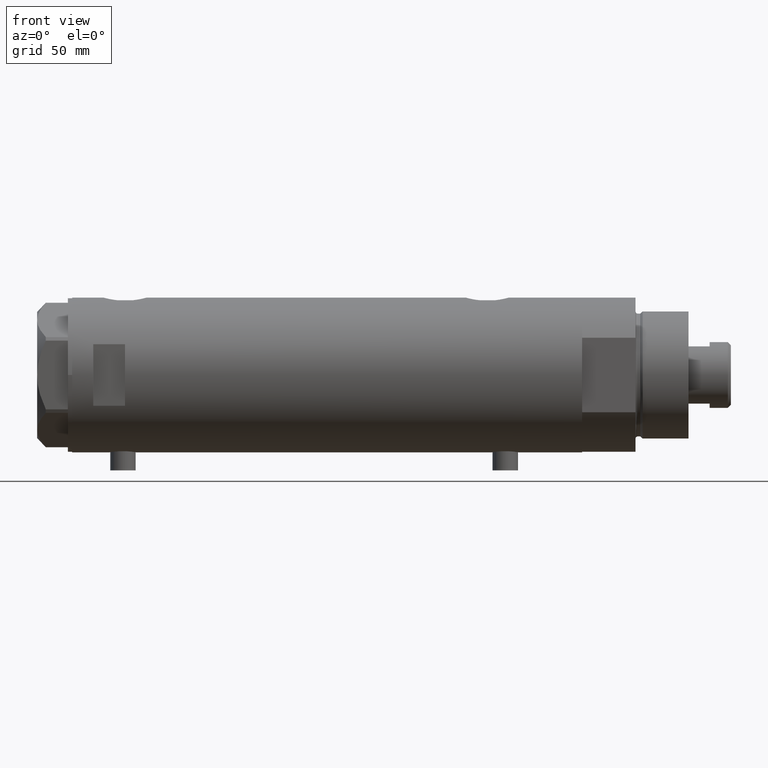
[diagram: clean part render]
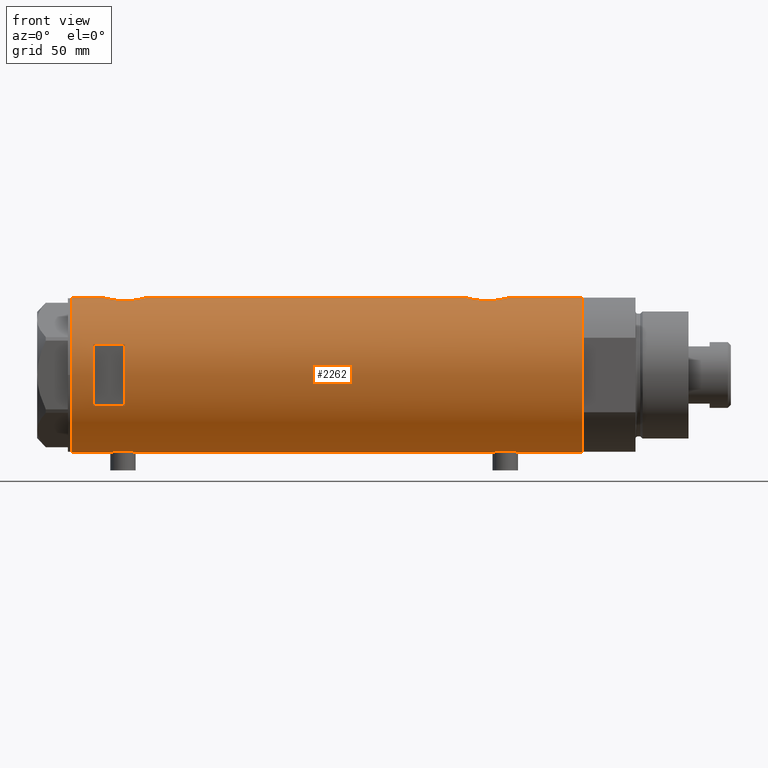
[diagram: same view with one face highlighted and labeled with its STEP entity id]
A machine part, front view. The second image highlights one B-rep face of the part: STEP entity #2262.
In plain terms, the highlighted cylindrical surface (partial cylindrical patch) has radius 36.5 mm, axis along (-1, -0, 0).
Its self-contained STEP definition (entity closure, byte-faithful):
#7 = CARTESIAN_POINT ( 'NONE',  ( 36.29527920868844859, -3.886508670267145416, -84.82716275830861719 ) ) ;
#8 = CARTESIAN_POINT ( 'NONE',  ( -36.49315367594273596, -0.8144497809045447845, 90.18960214445247914 ) ) ;
#11 = CARTESIAN_POINT ( 'NONE',  ( -36.02823773219768810, -5.849994928883552880, -86.30955101485642444 ) ) ;
#16 = DIRECTION ( 'NONE',  ( 0.000000000000000000, 0.000000000000000000, 1.000000000000000000 ) ) ;
#37 = EDGE_CURVE ( 'NONE', #2261, #2651, #3317, .T. ) ;
#40 = CARTESIAN_POINT ( 'NONE',  ( -36.01675918113430441, -5.920026275461277798, 94.38560443482110429 ) ) ;
#58 = CARTESIAN_POINT ( 'NONE',  ( 14.49137674618942739, -33.50000000000000000, 95.40000000000000568 ) ) ;
#62 = CARTESIAN_POINT ( 'NONE',  ( -35.96087392089862789, -6.250243747806517369, 96.80917490776182888 ) ) ;
#78 = CARTESIAN_POINT ( 'NONE',  ( -36.36656776002988778, -3.137002187003158582, 101.8213640927363457 ) ) ;
#116 = CARTESIAN_POINT ( 'NONE',  ( -36.50000000000000000, 4.469960816887838430E-15, -120.4000000000000057 ) ) ;
#120 = VERTEX_POINT ( 'NONE', #116 ) ;
#126 = CARTESIAN_POINT ( 'NONE',  ( -36.02782481185206365, -5.852531070448506512, 98.60277008952193967 ) ) ;
#170 = B_SPLINE_CURVE_WITH_KNOTS ( 'NONE', 3,
 ( #1147, #1990, #3460, #785, #3000, #431, #3386, #1325, #3911, #3478, #2741, #1722, #550, #4209, #2042, #1823, #727, #1471 ),
 .UNSPECIFIED., .F., .F.,
 ( 4, 2, 2, 2, 2, 2, 2, 2, 4 ),
 ( 0.01190956515753145012, 0.01339852714138290227, 0.01488748912523435441, 0.01637645110908580656, 0.01712093210101153090, 0.01786541309293725871, 0.01935437507678870739, 0.02084333706064015260, 0.02382126102834301526 ),
 .UNSPECIFIED. ) ;
#209 = CARTESIAN_POINT ( 'NONE',  ( 36.50000000000000000, 0.000000000000000000, -85.59999999999999432 ) ) ;
#248 = CARTESIAN_POINT ( 'NONE',  ( -36.47262891311153510, -1.427622242603855396, -78.01175370788301677 ) ) ;
#259 = DIRECTION ( 'NONE',  ( 1.000000000000000000, 0.000000000000000000, 0.000000000000000000 ) ) ;
#270 = B_SPLINE_CURVE_WITH_KNOTS ( 'NONE', 3,
 ( #1487, #2961, #4047, #4386, #2917, #2830, #767, #4437, #742, #1132, #992, #7, #2227, #4073, #4629, #3906, #2249, #209 ),
 .UNSPECIFIED., .F., .F.,
 ( 4, 2, 2, 2, 2, 2, 2, 2, 4 ),
 ( -0.01189883390545606531, -0.008924125429092034240, -0.008180448310001031675, -0.007436771190910029979, -0.005949416952728023983, -0.004462062714546017987, -0.002974708476364010257, -0.001487354238182005128, 1.734723475976807094E-18 ),
 .UNSPECIFIED. ) ;
#276 = CARTESIAN_POINT ( 'NONE',  ( -36.44621655743049615, -2.016281777336074832, 90.47017023300885796 ) ) ;
#278 = CARTESIAN_POINT ( 'NONE',  ( -36.39558535855674393, -2.764807686268001774, -89.70894118545612628 ) ) ;
#313 = CARTESIAN_POINT ( 'NONE',  ( -36.50000000000000000, 1.603939656238031057E-15, -77.85000000000000853 ) ) ;
#315 = EDGE_CURVE ( 'NONE', #1151, #2920, #4011, .T. ) ;
#329 = VECTOR ( 'NONE', #2767, 1000.000000000000000 ) ;
#334 = CARTESIAN_POINT ( 'NONE',  ( 36.29582892817134621, -3.881628320031159873, 104.6293443453499066 ) ) ;
#342 = ORIENTED_EDGE ( 'NONE', *, *, #3982, .F. ) ;
#348 = VERTEX_POINT ( 'NONE', #704 ) ;
#350 = CARTESIAN_POINT ( 'NONE',  ( -36.09582946723050867, -5.421573071064194060, -87.23608278370488733 ) ) ;
#369 = CARTESIAN_POINT ( 'NONE',  ( -36.50000000000000000, 4.469960493350315609E-15, 90.15000000000000568 ) ) ;
#384 = DIRECTION ( 'NONE',  ( 0.000000000000000000, 0.000000000000000000, 1.000000000000000000 ) ) ;
#392 = CARTESIAN_POINT ( 'NONE',  ( -35.98821803976956346, -6.090959022952117330, 97.81573883149417270 ) ) ;
#405 = CARTESIAN_POINT ( 'NONE',  ( 35.29999999999999716, -9.282241108697837362, 99.12021504754764578 ) ) ;
#418 = CARTESIAN_POINT ( 'NONE',  ( -36.43335814606993495, -2.212659578761325463, 102.2487639916951281 ) ) ;
#421 = CARTESIAN_POINT ( 'NONE',  ( -36.14410773716529235, -5.085921866747754372, -80.46164121579529649 ) ) ;
#431 = CARTESIAN_POINT ( 'NONE',  ( 36.34247810649306132, -3.420510937483959513, -66.19013481598274495 ) ) ;
#434 = DIRECTION ( 'NONE',  ( 0.000000000000000000, 0.000000000000000000, 1.000000000000000000 ) ) ;
#437 = CARTESIAN_POINT ( 'NONE',  ( 0.000000000000000000, 0.000000000000000000, 95.40000000000014779 ) ) ;
#441 = DIRECTION ( 'NONE',  ( 0.000000000000000000, 0.000000000000000000, 1.000000000000000000 ) ) ;
#444 = CARTESIAN_POINT ( 'NONE',  ( -36.01639592019625979, -5.922235714778421034, 98.40796802426915235 ) ) ;
#445 = ORIENTED_EDGE ( 'NONE', *, *, #37, .F. ) ;
#460 = CARTESIAN_POINT ( 'NONE',  ( -36.50000000000001421, -0.4136690418839317762, 102.6500000000000341 ) ) ;
#482 = CARTESIAN_POINT ( 'NONE',  ( 35.29999999999999716, -9.282241108697837362, 91.67978495245237980 ) ) ;
#484 = CIRCLE ( 'NONE', #1952, 36.50000000000000000 ) ;
#486 = CARTESIAN_POINT ( 'NONE',  ( -36.06543684817881257, -5.617774235967367247, 99.16954447971704667 ) ) ;
#493 = ORIENTED_EDGE ( 'NONE', *, *, #1298, .F. ) ;
#500 = EDGE_CURVE ( 'NONE', #1858, #2417, #4029, .T. ) ;
#550 = CARTESIAN_POINT ( 'NONE',  ( 35.93373217836897737, -6.415110096330620237, -67.91295733644906818 ) ) ;
#564 = AXIS2_PLACEMENT_3D ( 'NONE', #1670, #3054, #259 ) ;
#607 = CARTESIAN_POINT ( 'NONE',  ( 36.50000000000000000, 0.000000000000000000, -120.4000000000000057 ) ) ;
#615 = EDGE_CURVE ( 'NONE', #2933, #1971, #3258, .T. ) ;
#639 = EDGE_CURVE ( 'NONE', #348, #3776, #3612, .T. ) ;
#665 = CARTESIAN_POINT ( 'NONE',  ( -36.50000000000000000, 4.469960493350315609E-15, -90.35000000000000853 ) ) ;
#704 = CARTESIAN_POINT ( 'NONE',  ( 36.50000000000000000, 4.344614706140975428E-19, 105.4000000000000057 ) ) ;
#709 = DIRECTION ( 'NONE',  ( 1.000000000000000000, 0.000000000000000000, 0.000000000000000000 ) ) ;
#714 = CARTESIAN_POINT ( 'NONE',  ( -36.30176144752229561, -3.814344296723636951, -89.06801701950256245 ) ) ;
#715 = AXIS2_PLACEMENT_3D ( 'NONE', #4198, #1144, #2347 ) ;
#727 = CARTESIAN_POINT ( 'NONE',  ( 35.39807338191549491, -8.909271871950329214, -70.94919617267213141 ) ) ;
#742 = CARTESIAN_POINT ( 'NONE',  ( 36.00068527486601511, -6.030855700422090848, -83.59201327127354375 ) ) ;
#746 = LINE ( 'NONE', #1491, #1407 ) ;
#748 = CARTESIAN_POINT ( 'NONE',  ( -36.01675918113430441, -5.920026275461277798, -86.11439556517892413 ) ) ;
#767 = CARTESIAN_POINT ( 'NONE',  ( 35.83108131285856501, -6.958268797611358636, -82.78630783372825874 ) ) ;
#770 = B_SPLINE_CURVE_WITH_KNOTS ( 'NONE', 3,
 ( #665, #1419, #4390, #1040, #2498, #4701, #278, #4019, #3972, #714, #3585, #3302, #1768, #350, #4412, #11, #748, #2156, #3677, #3608, #1863, #3327, #1017, #2603, #1088, #4726, #826, #4513, #4449, #421, #3777, #3182, #2028, #3828, #3136, #3537, #936, #3875, #4300, #2203, #248, #1108, #1739, #313 ),
 .UNSPECIFIED., .F., .F.,
 ( 4, 2, 2, 2, 2, 2, 2, 2, 2, 2, 2, 2, 2, 2, 2, 2, 2, 2, 2, 2, 2, 4 ),
 ( 0.01957644481942643136, 0.02079966591703043266, 0.02202288701463443049, 0.02263449756343642941, 0.02324610811223842832, 0.02446932920984242615, 0.02569255030744642398, 0.02691577140505042529, 0.02752738195385242420, 0.02813899250265442659, 0.02936221360025846605, 0.03058543469786250205, 0.03119704524666452178, 0.03180865579546654498, 0.03303187689307057751, 0.03364348744187262152, 0.03425509799067465166, 0.03547831908827869807, 0.03670154018588274447, 0.03731315073468477461, 0.03792476128348679781, 0.03914798238109084422 ),
 .UNSPECIFIED. ) ;
#771 = CARTESIAN_POINT ( 'NONE',  ( -36.14410773716529235, -5.085921866747754372, 100.0383587842047461 ) ) ;
#772 = VERTEX_POINT ( 'NONE', #3401 ) ;
#785 = CARTESIAN_POINT ( 'NONE',  ( 36.44931971524465553, -1.985988150549293341, -65.78633139468234958 ) ) ;
#793 = CARTESIAN_POINT ( 'NONE',  ( -36.02823773219768810, -5.849994928883552880, 94.19044898514356134 ) ) ;
#799 = LINE ( 'NONE', #3664, #2820 ) ;
#804 = ORIENTED_EDGE ( 'NONE', *, *, #3433, .F. ) ;
#826 = CARTESIAN_POINT ( 'NONE',  ( -36.02782481185206365, -5.852531070448506512, -81.89722991047811718 ) ) ;
#862 = CARTESIAN_POINT ( 'NONE',  ( -36.09582946723050867, -5.421573071064194060, 93.26391721629518372 ) ) ;
#869 = CIRCLE ( 'NONE', #3558, 36.50000000000000000 ) ;
#897 = EDGE_CURVE ( 'NONE', #2475, #4777, #770, .T. ) ;
#936 = CARTESIAN_POINT ( 'NONE',  ( -36.39621039793029666, -2.776267550998806843, -78.48569246893224260 ) ) ;
#992 = CARTESIAN_POINT ( 'NONE',  ( 36.18850502651835654, -4.779575967213809840, -84.39779152890152147 ) ) ;
#1017 = CARTESIAN_POINT ( 'NONE',  ( -35.96794010939611752, -6.209972807992079069, -83.28444451008648741 ) ) ;
#1024 = B_SPLINE_CURVE_WITH_KNOTS ( 'NONE', 3,
 ( #482, #2642, #1972, #1679, #2414, #2441, #2467, #4217, #1732, #2094, #3867, #2364, #1335, #2792, #4266, #2770, #1653, #2387 ),
 .UNSPECIFIED., .F., .F.,
 ( 4, 2, 2, 2, 2, 2, 2, 2, 4 ),
 ( -0.01189883390545606531, -0.008924125429092034240, -0.008180448310001031675, -0.007436771190910029979, -0.005949416952728023983, -0.004462062714546017987, -0.002974708476364010257, -0.001487354238182005128, 1.734723475976807094E-18 ),
 .UNSPECIFIED. ) ;
#1037 = CARTESIAN_POINT ( 'NONE',  ( -36.50000000000000000, 4.469960493350315609E-15, -90.35000000000000853 ) ) ;
#1040 = CARTESIAN_POINT ( 'NONE',  ( -36.46614432713124643, -1.622933015999963313, -90.14966597386847980 ) ) ;
#1077 = CARTESIAN_POINT ( 'NONE',  ( 36.34247810649306132, -3.420510937483959513, 104.8098651840172977 ) ) ;
#1085 = EDGE_LOOP ( 'NONE', ( #4415, #1239, #4409, #4142, #4695, #493, #3748, #4225, #4168, #804, #1678, #342, #445, #4766, #2644, #3489 ) ) ;
#1088 = CARTESIAN_POINT ( 'NONE',  ( -35.99659093586380010, -6.041447834568799635, -82.48577587985177217 ) ) ;
#1108 = CARTESIAN_POINT ( 'NONE',  ( -36.49297138689434661, -0.8222528563518530786, -77.89066887946569295 ) ) ;
#1109 = VECTOR ( 'NONE', #384, 1000.000000000000000 ) ;
#1132 = CARTESIAN_POINT ( 'NONE',  ( 36.12792682573228831, -5.214735277442335004, -84.14693117988699100 ) ) ;
#1144 = DIRECTION ( 'NONE',  ( 0.000000000000000000, 0.000000000000000000, 1.000000000000000000 ) ) ;
#1145 = CARTESIAN_POINT ( 'NONE',  ( 35.39807338191549491, -8.909271871950329214, 100.0508038273278544 ) ) ;
#1147 = CARTESIAN_POINT ( 'NONE',  ( 36.50000000000000000, 4.344614706140975428E-19, -65.60000000000000853 ) ) ;
#1151 = VERTEX_POINT ( 'NONE', #2116 ) ;
#1155 = CARTESIAN_POINT ( 'NONE',  ( -36.30176144752229561, -3.814344296723636951, 91.43198298049746597 ) ) ;
#1191 = EDGE_CURVE ( 'NONE', #4076, #1677, #4656, .T. ) ;
#1202 = CARTESIAN_POINT ( 'NONE',  ( -36.19599073318030236, -4.702920041824403263, 100.5215383167658274 ) ) ;
#1212 = CARTESIAN_POINT ( 'NONE',  ( 36.18674680775578167, -4.776679548204626258, 104.1889231693125026 ) ) ;
#1218 = CARTESIAN_POINT ( 'NONE',  ( 36.50000000000000000, 0.000000000000000000, -120.4000000000000057 ) ) ;
#1239 = ORIENTED_EDGE ( 'NONE', *, *, #1693, .T. ) ;
#1298 = EDGE_CURVE ( 'NONE', #1151, #1971, #170, .T. ) ;
#1325 = CARTESIAN_POINT ( 'NONE',  ( 36.21540437201188922, -4.554727782332258279, -66.69402370911377886 ) ) ;
#1335 = CARTESIAN_POINT ( 'NONE',  ( 36.34184199234172041, -3.427106516421255744, 85.99259086319968048 ) ) ;
#1386 = CARTESIAN_POINT ( 'NONE',  ( 35.29999999999999716, -9.282241108697837362, -79.32021504754763441 ) ) ;
#1391 = CARTESIAN_POINT ( 'NONE',  ( -36.39558535855674393, -2.764807686268001774, 90.79105881454391636 ) ) ;
#1407 = VECTOR ( 'NONE', #2154, 1000.000000000000000 ) ;
#1419 = CARTESIAN_POINT ( 'NONE',  ( -36.49999999999999289, -0.4082012689449562859, -90.34999999999998010 ) ) ;
#1432 = CARTESIAN_POINT ( 'NONE',  ( 36.41918031349423757, -2.473644131148923009, 105.1018834546319027 ) ) ;
#1450 = CARTESIAN_POINT ( 'NONE',  ( 36.50000000000000000, 0.000000000000000000, -120.4000000000000057 ) ) ;
#1471 = CARTESIAN_POINT ( 'NONE',  ( 35.29999999999999716, -9.282241108697837362, -71.87978495245236843 ) ) ;
#1477 = CARTESIAN_POINT ( 'NONE',  ( -36.50000000000000000, 4.469960816887838430E-15, -120.4000000000000057 ) ) ;
#1487 = CARTESIAN_POINT ( 'NONE',  ( 35.29999999999999716, -9.282241108697837362, -79.32021504754763441 ) ) ;
#1491 = CARTESIAN_POINT ( 'NONE',  ( -14.49137674618942739, -33.50000000000000000, -120.4000000000000057 ) ) ;
#1515 = CARTESIAN_POINT ( 'NONE',  ( -36.21356728133255842, -4.566014386638764577, 100.6726266076474730 ) ) ;
#1522 = CARTESIAN_POINT ( 'NONE',  ( 36.09633718678917802, -5.417295330713078449, 103.8091486734521283 ) ) ;
#1531 = CARTESIAN_POINT ( 'NONE',  ( -36.39621039793029666, -2.776267550998806843, 102.0143075310678000 ) ) ;
#1609 = CARTESIAN_POINT ( 'NONE',  ( -35.96816095843705341, -6.208699946936198977, 95.57503622872209803 ) ) ;
#1653 = CARTESIAN_POINT ( 'NONE',  ( 36.50000000000000711, -0.5031001875915692700, 85.40000000000004832 ) ) ;
#1670 = CARTESIAN_POINT ( 'NONE',  ( 0.000000000000000000, 0.000000000000000000, 110.3999999999999915 ) ) ;
#1676 = LINE ( 'NONE', #4292, #329 ) ;
#1677 = VERTEX_POINT ( 'NONE', #3019 ) ;
#1678 = ORIENTED_EDGE ( 'NONE', *, *, #639, .T. ) ;
#1679 = CARTESIAN_POINT ( 'NONE',  ( 35.69273631926343882, -7.635692914629149008, 88.93799804348513760 ) ) ;
#1682 = VERTEX_POINT ( 'NONE', #4140 ) ;
#1693 = EDGE_CURVE ( 'NONE', #120, #3793, #484, .T. ) ;
#1722 = CARTESIAN_POINT ( 'NONE',  ( 36.00092304812866217, -6.029438422680412302, -67.60691844426347075 ) ) ;
#1728 = B_SPLINE_CURVE_WITH_KNOTS ( 'NONE', 3,
 ( #369, #2133, #8, #3583, #276, #1766, #1391, #2866, #4339, #1155, #3729, #4097, #1885, #862, #4149, #793, #40, #3414, #4556, #1609, #3353, #62, #1935, #392, #4123, #444, #126, #486, #2308, #771, #4535, #1202, #1515, #2342, #3079, #78, #1531, #418, #2643, #3699, #2278, #2990, #460, #3007 ),
 .UNSPECIFIED., .F., .F.,
 ( 4, 2, 2, 2, 2, 2, 2, 2, 2, 2, 2, 2, 2, 2, 2, 2, 2, 2, 2, 2, 2, 4 ),
 ( 0.01957644481942643136, 0.02079966591703043266, 0.02202288701463443049, 0.02263449756343642941, 0.02324610811223842832, 0.02446932920984242615, 0.02569255030744642398, 0.02691577140505042529, 0.02752738195385242420, 0.02813899250265442659, 0.02936221360025846605, 0.03058543469786250205, 0.03119704524666452178, 0.03180865579546654498, 0.03303187689307057751, 0.03364348744187262152, 0.03425509799067465166, 0.03547831908827869807, 0.03670154018588274447, 0.03731315073468477461, 0.03792476128348679781, 0.03914798238109084422 ),
 .UNSPECIFIED. ) ;
#1731 = VECTOR ( 'NONE', #2533, 1000.000000000000000 ) ;
#1732 = CARTESIAN_POINT ( 'NONE',  ( 36.00068527486601511, -6.030855700422090848, 87.40798672872648467 ) ) ;
#1739 = CARTESIAN_POINT ( 'NONE',  ( -36.50000000000001421, -0.4136690418839317762, -77.85000000000002274 ) ) ;
#1762 = DIRECTION ( 'NONE',  ( 0.000000000000000000, 0.000000000000000000, 1.000000000000000000 ) ) ;
#1766 = CARTESIAN_POINT ( 'NONE',  ( -36.40915499150419521, -2.580495338846545472, 90.70394986644524238 ) ) ;
#1768 = CARTESIAN_POINT ( 'NONE',  ( -36.16096637594732499, -4.968588355849258953, -87.91334492817760804 ) ) ;
#1798 = CARTESIAN_POINT ( 'NONE',  ( 36.50000000000000000, 4.344614706140975428E-19, 105.4000000000000057 ) ) ;
#1823 = CARTESIAN_POINT ( 'NONE',  ( 35.52323553852023963, -8.411295122831250026, -70.10247607048910368 ) ) ;
#1858 = VERTEX_POINT ( 'NONE', #2500 ) ;
#1863 = CARTESIAN_POINT ( 'NONE',  ( -35.96095902952617251, -6.249754054240900913, -84.51658765420468455 ) ) ;
#1865 = CARTESIAN_POINT ( 'NONE',  ( 35.29999999999999716, -9.282241108697837362, -120.4000000000000057 ) ) ;
#1866 = LINE ( 'NONE', #2972, #2968 ) ;
#1885 = CARTESIAN_POINT ( 'NONE',  ( -36.16096637594732499, -4.968588355849258953, 92.58665507182242038 ) ) ;
#1909 = DIRECTION ( 'NONE',  ( -0.000000000000000000, -4.625929269271492422E-15, 1.000000000000000000 ) ) ;
#1915 = CARTESIAN_POINT ( 'NONE',  ( -36.50000000000000000, 4.469960816887838430E-15, 120.4000000000000057 ) ) ;
#1935 = CARTESIAN_POINT ( 'NONE',  ( -35.96794010939611752, -6.209972807992079069, 97.21555548991356943 ) ) ;
#1952 = AXIS2_PLACEMENT_3D ( 'NONE', #2493, #441, #709 ) ;
#1965 = CARTESIAN_POINT ( 'NONE',  ( -36.50000000000000000, 1.603939656238031057E-15, -77.85000000000000853 ) ) ;
#1971 = VERTEX_POINT ( 'NONE', #3248 ) ;
#1972 = CARTESIAN_POINT ( 'NONE',  ( 35.52320828895289395, -8.411622242316134646, 89.90227134055388092 ) ) ;
#1981 = EDGE_CURVE ( 'NONE', #772, #4371, #869, .T. ) ;
#1990 = CARTESIAN_POINT ( 'NONE',  ( 36.50000000000000711, -0.4962708696651116913, -65.60000000000000853 ) ) ;
#2028 = CARTESIAN_POINT ( 'NONE',  ( -36.21356728133255842, -4.566014386638764577, -79.82737339235254126 ) ) ;
#2042 = CARTESIAN_POINT ( 'NONE',  ( 35.72583162417570435, -7.484316398521980496, -68.94957356280497152 ) ) ;
#2094 = CARTESIAN_POINT ( 'NONE',  ( 36.12792682573228831, -5.214735277442335004, 86.85306882011300900 ) ) ;
#2116 = CARTESIAN_POINT ( 'NONE',  ( 36.50000000000000000, 4.344614706140975428E-19, -65.60000000000000853 ) ) ;
#2133 = CARTESIAN_POINT ( 'NONE',  ( -36.49999999999999289, -0.4082012689449562859, 90.15000000000001990 ) ) ;
#2154 = DIRECTION ( 'NONE',  ( -0.000000000000000000, -0.000000000000000000, -1.000000000000000000 ) ) ;
#2156 = CARTESIAN_POINT ( 'NONE',  ( -35.99695583620881933, -6.039273428153905776, -85.72224444987756442 ) ) ;
#2186 = CARTESIAN_POINT ( 'NONE',  ( 36.44931971524465553, -1.985988150549293341, 105.2136686053176078 ) ) ;
#2198 = EDGE_LOOP ( 'NONE', ( #2303, #4510, #2546, #4046 ) ) ;
#2203 = CARTESIAN_POINT ( 'NONE',  ( -36.46417279006304568, -1.628689148039109247, -78.06246061306184458 ) ) ;
#2227 = CARTESIAN_POINT ( 'NONE',  ( 36.34184199234172041, -3.427106516421255744, -85.00740913680034794 ) ) ;
#2249 = CARTESIAN_POINT ( 'NONE',  ( 36.50000000000000711, -0.5031001875915692700, -85.59999999999999432 ) ) ;
#2261 = VERTEX_POINT ( 'NONE', #3315 ) ;
#2262 = ADVANCED_FACE ( 'NONE', ( #3335, #2608 ), #3711, .T. ) ;
#2264 = CARTESIAN_POINT ( 'NONE',  ( 36.00092304812866217, -6.029438422680412302, 103.3930815557365008 ) ) ;
#2276 = VECTOR ( 'NONE', #1762, 1000.000000000000000 ) ;
#2278 = CARTESIAN_POINT ( 'NONE',  ( -36.47262891311153510, -1.427622242603855396, 102.4882462921170259 ) ) ;
#2294 = CARTESIAN_POINT ( 'NONE',  ( 35.93373217836897737, -6.415110096330620237, 103.0870426635509176 ) ) ;
#2296 = CARTESIAN_POINT ( 'NONE',  ( -36.50000000000000000, 4.469960493350315609E-15, 90.15000000000000568 ) ) ;
#2303 = ORIENTED_EDGE ( 'NONE', *, *, #1981, .F. ) ;
#2308 = CARTESIAN_POINT ( 'NONE',  ( -36.09514898390870030, -5.426114745500164815, 99.52838652946141451 ) ) ;
#2314 = CARTESIAN_POINT ( 'NONE',  ( 35.79638309643555516, -7.141827709208434349, 102.4170192696955013 ) ) ;
#2342 = CARTESIAN_POINT ( 'NONE',  ( -36.26616882068471170, -4.135065845178865551, 101.1041505594009635 ) ) ;
#2347 = DIRECTION ( 'NONE',  ( 1.000000000000000000, 0.000000000000000000, 0.000000000000000000 ) ) ;
#2364 = CARTESIAN_POINT ( 'NONE',  ( 36.29527920868844859, -3.886508670267145416, 86.17283724169139703 ) ) ;
#2387 = CARTESIAN_POINT ( 'NONE',  ( 36.50000000000000000, 0.000000000000000000, 85.40000000000001990 ) ) ;
#2414 = CARTESIAN_POINT ( 'NONE',  ( 35.72742963626381396, -7.471989379615407323, 88.74937739587225849 ) ) ;
#2417 = VERTEX_POINT ( 'NONE', #2474 ) ;
#2426 = B_SPLINE_CURVE_WITH_KNOTS ( 'NONE', 3,
 ( #1798, #3263, #4740, #2186, #1432, #1077, #334, #2695, #1212, #4520, #1522, #2264, #2294, #2314, #4066, #2997, #1145, #405 ),
 .UNSPECIFIED., .F., .F.,
 ( 4, 2, 2, 2, 2, 2, 2, 2, 4 ),
 ( 0.01190956515753145012, 0.01339852714138290227, 0.01488748912523435441, 0.01637645110908580656, 0.01712093210101153090, 0.01786541309293725871, 0.01935437507678870739, 0.02084333706064015260, 0.02382126102834301526 ),
 .UNSPECIFIED. ) ;
#2441 = CARTESIAN_POINT ( 'NONE',  ( 35.79656810172926384, -7.133411935499478496, 88.38745121442323693 ) ) ;
#2467 = CARTESIAN_POINT ( 'NONE',  ( 35.83108131285856501, -6.958268797611358636, 88.21369216627178389 ) ) ;
#2474 = CARTESIAN_POINT ( 'NONE',  ( -14.49137674618942739, -33.50000000000000000, 110.3999999999999915 ) ) ;
#2475 = VERTEX_POINT ( 'NONE', #1037 ) ;
#2479 = CARTESIAN_POINT ( 'NONE',  ( 35.29999999999999716, -9.282241108697837362, -120.4000000000000057 ) ) ;
#2493 = CARTESIAN_POINT ( 'NONE',  ( 0.000000000000000000, 0.000000000000000000, -120.4000000000000057 ) ) ;
#2494 = EDGE_CURVE ( 'NONE', #2417, #772, #746, .T. ) ;
#2498 = CARTESIAN_POINT ( 'NONE',  ( -36.44621655743049615, -2.016281777336074832, -90.02982976699115625 ) ) ;
#2500 = CARTESIAN_POINT ( 'NONE',  ( 14.49137674618942739, -33.50000000000000000, 110.3999999999999915 ) ) ;
#2533 = DIRECTION ( 'NONE',  ( 0.000000000000000000, 0.000000000000000000, 1.000000000000000000 ) ) ;
#2546 = ORIENTED_EDGE ( 'NONE', *, *, #500, .F. ) ;
#2595 = DIRECTION ( 'NONE',  ( 0.000000000000000000, 0.000000000000000000, 1.000000000000000000 ) ) ;
#2603 = CARTESIAN_POINT ( 'NONE',  ( -35.98821803976956346, -6.090959022952117330, -82.68426116850582730 ) ) ;
#2608 = FACE_BOUND ( 'NONE', #2198, .T. ) ;
#2642 = CARTESIAN_POINT ( 'NONE',  ( 35.39794035667548400, -8.909777761736840773, 90.75045840910549089 ) ) ;
#2643 = CARTESIAN_POINT ( 'NONE',  ( -36.44454782745417276, -2.020757099930494682, 102.3178586442099913 ) ) ;
#2644 = ORIENTED_EDGE ( 'NONE', *, *, #3923, .F. ) ;
#2645 = EDGE_CURVE ( 'NONE', #4723, #2261, #1728, .T. ) ;
#2651 = VERTEX_POINT ( 'NONE', #1915 ) ;
#2695 = CARTESIAN_POINT ( 'NONE',  ( 36.21540437201188922, -4.554727782332258279, 104.3059762908862638 ) ) ;
#2710 = DIRECTION ( 'NONE',  ( 0.000000000000000000, 0.000000000000000000, 1.000000000000000000 ) ) ;
#2741 = CARTESIAN_POINT ( 'NONE',  ( 36.09633718678917802, -5.417295330713078449, -67.19085132654788595 ) ) ;
#2742 = CIRCLE ( 'NONE', #3355, 36.50000000000000000 ) ;
#2767 = DIRECTION ( 'NONE',  ( 0.000000000000000000, 0.000000000000000000, 1.000000000000000000 ) ) ;
#2770 = CARTESIAN_POINT ( 'NONE',  ( 36.48960339336947101, -1.002724032967601708, 85.43775134026506635 ) ) ;
#2792 = CARTESIAN_POINT ( 'NONE',  ( 36.41856252531823657, -2.482507212621166470, 85.70043487153495221 ) ) ;
#2814 = VECTOR ( 'NONE', #434, 1000.000000000000000 ) ;
#2820 = VECTOR ( 'NONE', #3382, 1000.000000000000000 ) ;
#2830 = CARTESIAN_POINT ( 'NONE',  ( 35.79656810172926384, -7.133411935499478496, -82.61254878557676307 ) ) ;
#2866 = CARTESIAN_POINT ( 'NONE',  ( -36.36635911126388265, -3.125815113635437292, 90.98394399592098125 ) ) ;
#2917 = CARTESIAN_POINT ( 'NONE',  ( 35.72742963626381396, -7.471989379615407323, -82.25062260412775572 ) ) ;
#2920 = VERTEX_POINT ( 'NONE', #4693 ) ;
#2933 = VERTEX_POINT ( 'NONE', #1386 ) ;
#2935 = CARTESIAN_POINT ( 'NONE',  ( 35.29999999999999716, -9.282241108697837362, 91.67978495245237980 ) ) ;
#2961 = CARTESIAN_POINT ( 'NONE',  ( 35.39794035667548400, -8.909777761736840773, -80.24954159089453753 ) ) ;
#2968 = VECTOR ( 'NONE', #3737, 1000.000000000000000 ) ;
#2972 = CARTESIAN_POINT ( 'NONE',  ( -36.50000000000000000, 4.469960816887838430E-15, -120.4000000000000057 ) ) ;
#2990 = CARTESIAN_POINT ( 'NONE',  ( -36.49297138689434661, -0.8222528563518530786, 102.6093311205343923 ) ) ;
#2997 = CARTESIAN_POINT ( 'NONE',  ( 35.52323553852023963, -8.411295122831250026, 100.8975239295108821 ) ) ;
#3000 = CARTESIAN_POINT ( 'NONE',  ( 36.41918031349423757, -2.473644131148923009, -65.89811654536809726 ) ) ;
#3007 = CARTESIAN_POINT ( 'NONE',  ( -36.50000000000000000, 1.603939656238031057E-15, 102.6500000000000199 ) ) ;
#3019 = CARTESIAN_POINT ( 'NONE',  ( 35.29999999999999716, -9.282241108697837362, 99.12021504754764578 ) ) ;
#3040 = DIRECTION ( 'NONE',  ( 1.000000000000000000, 0.000000000000000000, 0.000000000000000000 ) ) ;
#3054 = DIRECTION ( 'NONE',  ( -0.000000000000000000, 0.000000000000000000, -1.000000000000000000 ) ) ;
#3064 = CARTESIAN_POINT ( 'NONE',  ( 0.000000000000000000, 0.000000000000000000, 120.4000000000000057 ) ) ;
#3079 = CARTESIAN_POINT ( 'NONE',  ( -36.30107494031872051, -3.820993528321233068, 101.3630615353631157 ) ) ;
#3129 = EDGE_CURVE ( 'NONE', #3793, #1682, #4477, .T. ) ;
#3136 = CARTESIAN_POINT ( 'NONE',  ( -36.30107494031872051, -3.820993528321233068, -79.13693846463692694 ) ) ;
#3182 = CARTESIAN_POINT ( 'NONE',  ( -36.19599073318030236, -4.702920041824403263, -79.97846168323422944 ) ) ;
#3199 = EDGE_CURVE ( 'NONE', #4371, #1858, #1676, .T. ) ;
#3248 = CARTESIAN_POINT ( 'NONE',  ( 35.29999999999999716, -9.282241108697837362, -71.87978495245236843 ) ) ;
#3258 = LINE ( 'NONE', #1865, #4187 ) ;
#3263 = CARTESIAN_POINT ( 'NONE',  ( 36.50000000000000711, -0.4962708696651116913, 105.4000000000000199 ) ) ;
#3267 = VECTOR ( 'NONE', #2595, 1000.000000000000000 ) ;
#3302 = CARTESIAN_POINT ( 'NONE',  ( -36.19666146462960654, -4.704890678739094945, -88.23429859510781625 ) ) ;
#3315 = CARTESIAN_POINT ( 'NONE',  ( -36.50000000000000000, 1.603939656238031057E-15, 102.6500000000000199 ) ) ;
#3317 = LINE ( 'NONE', #1477, #1109 ) ;
#3327 = CARTESIAN_POINT ( 'NONE',  ( -35.96087392089862789, -6.250243747806517369, -83.69082509223819955 ) ) ;
#3335 = FACE_OUTER_BOUND ( 'NONE', #1085, .T. ) ;
#3353 = CARTESIAN_POINT ( 'NONE',  ( -35.96095902952617251, -6.249754054240900913, 95.98341234579532966 ) ) ;
#3355 = AXIS2_PLACEMENT_3D ( 'NONE', #3064, #2710, #3040 ) ;
#3382 = DIRECTION ( 'NONE',  ( 0.000000000000000000, 0.000000000000000000, 1.000000000000000000 ) ) ;
#3386 = CARTESIAN_POINT ( 'NONE',  ( 36.29582892817134621, -3.881628320031159873, -66.37065565465010764 ) ) ;
#3401 = CARTESIAN_POINT ( 'NONE',  ( -14.49137674618942739, -33.50000000000000000, 95.40000000000000568 ) ) ;
#3414 = CARTESIAN_POINT ( 'NONE',  ( -35.99695583620881933, -6.039273428153905776, 94.77775555012246400 ) ) ;
#3433 = EDGE_CURVE ( 'NONE', #348, #1677, #2426, .T. ) ;
#3460 = CARTESIAN_POINT ( 'NONE',  ( 36.48988302519020266, -0.9927202255321166957, -65.63673010588698276 ) ) ;
#3478 = CARTESIAN_POINT ( 'NONE',  ( 36.12724769814495573, -5.207618053557754756, -67.05935879511537223 ) ) ;
#3489 = ORIENTED_EDGE ( 'NONE', *, *, #897, .F. ) ;
#3537 = CARTESIAN_POINT ( 'NONE',  ( -36.36656776002988778, -3.137002187003158582, -78.67863590726369694 ) ) ;
#3558 = AXIS2_PLACEMENT_3D ( 'NONE', #437, #1909, #4479 ) ;
#3583 = CARTESIAN_POINT ( 'NONE',  ( -36.46614432713124643, -1.622933015999963313, 90.35033402613153442 ) ) ;
#3585 = CARTESIAN_POINT ( 'NONE',  ( -36.26692673949090562, -4.128477002029503851, -88.80999987432169007 ) ) ;
#3608 = CARTESIAN_POINT ( 'NONE',  ( -35.96816095843705341, -6.208699946936198977, -84.92496377127787355 ) ) ;
#3612 = LINE ( 'NONE', #3978, #1731 ) ;
#3664 = CARTESIAN_POINT ( 'NONE',  ( -36.50000000000000000, 4.469960816887838430E-15, -120.4000000000000057 ) ) ;
#3677 = CARTESIAN_POINT ( 'NONE',  ( -35.98855750525641639, -6.088954600884530777, -85.52430226150170256 ) ) ;
#3699 = CARTESIAN_POINT ( 'NONE',  ( -36.46417279006304568, -1.628689148039109247, 102.4375393869382123 ) ) ;
#3711 = CYLINDRICAL_SURFACE ( 'NONE', #715, 36.50000000000000000 ) ;
#3729 = CARTESIAN_POINT ( 'NONE',  ( -36.26692673949090562, -4.128477002029503851, 91.69000012567835256 ) ) ;
#3737 = DIRECTION ( 'NONE',  ( 0.000000000000000000, 0.000000000000000000, 1.000000000000000000 ) ) ;
#3748 = ORIENTED_EDGE ( 'NONE', *, *, #315, .T. ) ;
#3776 = VERTEX_POINT ( 'NONE', #3979 ) ;
#3777 = CARTESIAN_POINT ( 'NONE',  ( -36.16125812922425098, -4.962923794285024393, -80.29553914089240152 ) ) ;
#3793 = VERTEX_POINT ( 'NONE', #1450 ) ;
#3828 = CARTESIAN_POINT ( 'NONE',  ( -36.26616882068471170, -4.135065845178865551, -79.39584944059912175 ) ) ;
#3867 = CARTESIAN_POINT ( 'NONE',  ( 36.18850502651835654, -4.779575967213809840, 86.60220847109846432 ) ) ;
#3875 = CARTESIAN_POINT ( 'NONE',  ( -36.43335814606993495, -2.212659578761325463, -78.25123600830491455 ) ) ;
#3891 = EDGE_CURVE ( 'NONE', #120, #2475, #1866, .T. ) ;
#3906 = CARTESIAN_POINT ( 'NONE',  ( 36.48960339336947101, -1.002724032967601708, -85.56224865973499050 ) ) ;
#3911 = CARTESIAN_POINT ( 'NONE',  ( 36.18674680775578167, -4.776679548204626258, -66.81107683068754000 ) ) ;
#3923 = EDGE_CURVE ( 'NONE', #4777, #4723, #799, .T. ) ;
#3972 = CARTESIAN_POINT ( 'NONE',  ( -36.35061318816141096, -3.303361544904982239, -89.40964041943020391 ) ) ;
#3978 = CARTESIAN_POINT ( 'NONE',  ( 36.50000000000000000, 0.000000000000000000, -120.4000000000000057 ) ) ;
#3979 = CARTESIAN_POINT ( 'NONE',  ( 36.50000000000000000, 0.000000000000000000, 120.4000000000000057 ) ) ;
#3982 = EDGE_CURVE ( 'NONE', #2651, #3776, #2742, .T. ) ;
#4011 = LINE ( 'NONE', #607, #2276 ) ;
#4019 = CARTESIAN_POINT ( 'NONE',  ( -36.36635911126388265, -3.125815113635437292, -89.51605600407906138 ) ) ;
#4029 = CIRCLE ( 'NONE', #564, 36.50000000000000000 ) ;
#4046 = ORIENTED_EDGE ( 'NONE', *, *, #3199, .F. ) ;
#4047 = CARTESIAN_POINT ( 'NONE',  ( 35.52320828895289395, -8.411622242316134646, -81.09772865944610487 ) ) ;
#4066 = CARTESIAN_POINT ( 'NONE',  ( 35.72583162417570435, -7.484316398521980496, 102.0504264371950143 ) ) ;
#4073 = CARTESIAN_POINT ( 'NONE',  ( 36.41856252531823657, -2.482507212621166470, -85.29956512846501937 ) ) ;
#4076 = VERTEX_POINT ( 'NONE', #2935 ) ;
#4097 = CARTESIAN_POINT ( 'NONE',  ( -36.19666146462960654, -4.704890678739094945, 92.26570140489218375 ) ) ;
#4123 = CARTESIAN_POINT ( 'NONE',  ( -35.99659093586380010, -6.041447834568799635, 98.01422412014827046 ) ) ;
#4133 = EDGE_CURVE ( 'NONE', #2933, #1682, #270, .T. ) ;
#4140 = CARTESIAN_POINT ( 'NONE',  ( 36.50000000000000000, 0.000000000000000000, -85.59999999999999432 ) ) ;
#4142 = ORIENTED_EDGE ( 'NONE', *, *, #4133, .F. ) ;
#4149 = CARTESIAN_POINT ( 'NONE',  ( -36.06605150775667568, -5.613853192123348101, 93.62234311727458191 ) ) ;
#4168 = ORIENTED_EDGE ( 'NONE', *, *, #1191, .T. ) ;
#4187 = VECTOR ( 'NONE', #16, 1000.000000000000000 ) ;
#4198 = CARTESIAN_POINT ( 'NONE',  ( 0.000000000000000000, 0.000000000000000000, -120.4000000000000057 ) ) ;
#4209 = CARTESIAN_POINT ( 'NONE',  ( 35.79638309643555516, -7.141827709208434349, -68.58298073030452713 ) ) ;
#4217 = CARTESIAN_POINT ( 'NONE',  ( 35.93363298843768661, -6.415574104180976178, 87.71348527111109661 ) ) ;
#4225 = ORIENTED_EDGE ( 'NONE', *, *, #4401, .F. ) ;
#4266 = CARTESIAN_POINT ( 'NONE',  ( 36.44881677724178104, -1.995085670027227032, 85.58819654630534046 ) ) ;
#4292 = CARTESIAN_POINT ( 'NONE',  ( 14.49137674618942739, -33.50000000000000000, -120.4000000000000057 ) ) ;
#4300 = CARTESIAN_POINT ( 'NONE',  ( -36.44454782745417276, -2.020757099930494682, -78.18214135579003710 ) ) ;
#4339 = CARTESIAN_POINT ( 'NONE',  ( -36.35061318816141096, -3.303361544904982239, 91.09035958056982452 ) ) ;
#4371 = VERTEX_POINT ( 'NONE', #58 ) ;
#4386 = CARTESIAN_POINT ( 'NONE',  ( 35.69273631926343882, -7.635692914629149008, -82.06200195651489082 ) ) ;
#4390 = CARTESIAN_POINT ( 'NONE',  ( -36.49315367594273596, -0.8144497809045447845, -90.31039785554752086 ) ) ;
#4401 = EDGE_CURVE ( 'NONE', #4076, #2920, #1024, .T. ) ;
#4409 = ORIENTED_EDGE ( 'NONE', *, *, #3129, .T. ) ;
#4412 = CARTESIAN_POINT ( 'NONE',  ( -36.06605150775667568, -5.613853192123348101, -86.87765688272544651 ) ) ;
#4415 = ORIENTED_EDGE ( 'NONE', *, *, #3891, .F. ) ;
#4437 = CARTESIAN_POINT ( 'NONE',  ( 35.93363298843768661, -6.415574104180976178, -83.28651472888894602 ) ) ;
#4449 = CARTESIAN_POINT ( 'NONE',  ( -36.09514898390870030, -5.426114745500164815, -80.97161347053862812 ) ) ;
#4477 = LINE ( 'NONE', #1218, #2814 ) ;
#4479 = DIRECTION ( 'NONE',  ( 1.776356839400250465E-15, 1.000000000000000000, 4.562560375171875891E-15 ) ) ;
#4510 = ORIENTED_EDGE ( 'NONE', *, *, #2494, .F. ) ;
#4513 = CARTESIAN_POINT ( 'NONE',  ( -36.06543684817881257, -5.617774235967367247, -81.33045552028302438 ) ) ;
#4520 = CARTESIAN_POINT ( 'NONE',  ( 36.12724769814495573, -5.207618053557754756, 103.9406412048846704 ) ) ;
#4535 = CARTESIAN_POINT ( 'NONE',  ( -36.16125812922425098, -4.962923794285024393, 100.2044608591076127 ) ) ;
#4556 = CARTESIAN_POINT ( 'NONE',  ( -35.98855750525641639, -6.088954600884530777, 94.97569773849834007 ) ) ;
#4629 = CARTESIAN_POINT ( 'NONE',  ( 36.44881677724178104, -1.995085670027227032, -85.41180345369463112 ) ) ;
#4656 = LINE ( 'NONE', #2479, #3267 ) ;
#4693 = CARTESIAN_POINT ( 'NONE',  ( 36.50000000000000000, 0.000000000000000000, 85.40000000000001990 ) ) ;
#4695 = ORIENTED_EDGE ( 'NONE', *, *, #615, .T. ) ;
#4701 = CARTESIAN_POINT ( 'NONE',  ( -36.40915499150419521, -2.580495338846545472, -89.79605013355480025 ) ) ;
#4723 = VERTEX_POINT ( 'NONE', #2296 ) ;
#4726 = CARTESIAN_POINT ( 'NONE',  ( -36.01639592019625979, -5.922235714778421034, -82.09203197573087607 ) ) ;
#4740 = CARTESIAN_POINT ( 'NONE',  ( 36.48988302519020266, -0.9927202255321166957, 105.3632698941130172 ) ) ;
#4766 = ORIENTED_EDGE ( 'NONE', *, *, #2645, .F. ) ;
#4777 = VERTEX_POINT ( 'NONE', #1965 ) ;